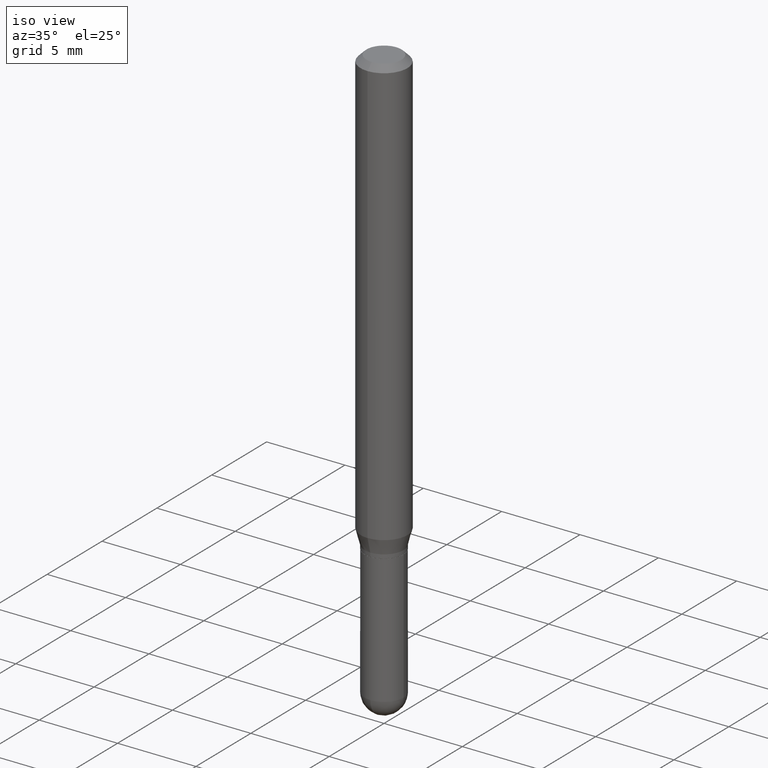
[diagram: clean part render]
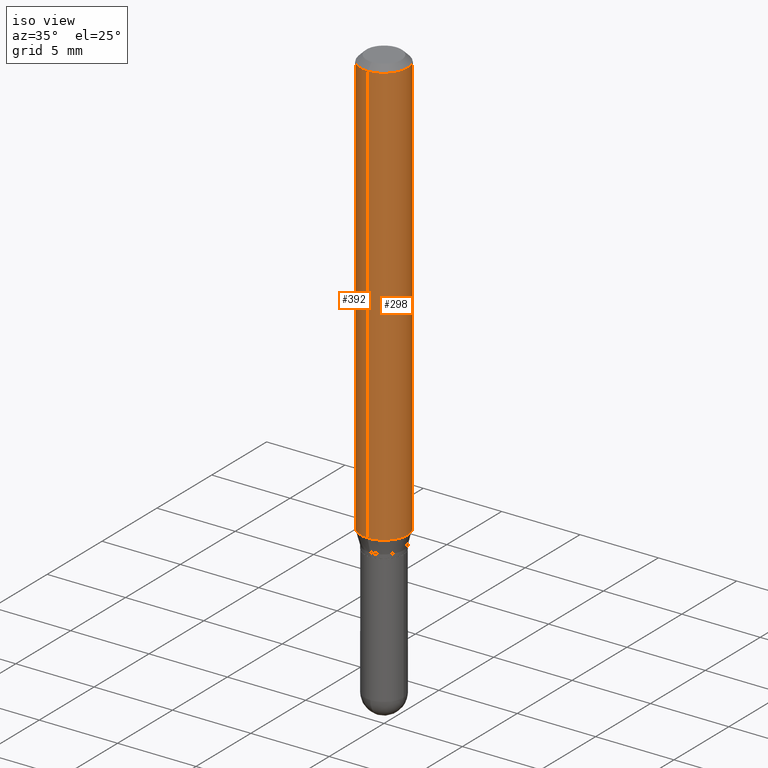
[diagram: same view with one multi-face feature highlighted, each face labeled with its STEP entity id]
A machine part, iso view. The highlighted faces form ONE feature: a constant-radius fillet chain: 2 tangent blend faces with common blend radius 1.4999 mm. The faces share edges in the B-rep.
Their STEP definitions:
[1] entity #392 (Cylinder):
#9 = EDGE_CURVE ( 'NONE', #94, #474, #416, .T. ) ;
#15 = ORIENTED_EDGE ( 'NONE', *, *, #9, .F. ) ;
#19 = VERTEX_POINT ( 'NONE', #83 ) ;
#32 = CIRCLE ( 'NONE', #331, 0.05904999999999999832 ) ;
#55 = DIRECTION ( 'NONE',  ( -2.445540907336680445E-29, 3.491378085890391934E-15, 1.000000000000000000 ) ) ;
#75 = CARTESIAN_POINT ( 'NONE',  ( 0.000000000000000000, 0.000000000000000000, 0.000000000000000000 ) ) ;
#83 = CARTESIAN_POINT ( 'NONE',  ( -4.123439461173478031E-16, -0.05905000000000376614, -1.075339299545447158 ) ) ;
#84 = DIRECTION ( 'NONE',  ( -2.445540907336680445E-29, 3.491378085890391934E-15, 1.000000000000000000 ) ) ;
#94 = VERTEX_POINT ( 'NONE', #167 ) ;
#118 = DIRECTION ( 'NONE',  ( -6.982962677686265922E-15, -1.000000000000000000, 4.626330217890369336E-15 ) ) ;
#121 = EDGE_CURVE ( 'NONE', #19, #474, #136, .T. ) ;
#136 = LINE ( 'NONE', #447, #373 ) ;
#167 = CARTESIAN_POINT ( 'NONE',  ( 4.195754854663657226E-16, 0.05904999999999996363, -0.01500000000000067078 ) ) ;
#181 = DIRECTION ( 'NONE',  ( -2.445540907336680445E-29, 3.491378085890391934E-15, 1.000000000000000000 ) ) ;
#189 = VERTEX_POINT ( 'NONE', #195 ) ;
#195 = CARTESIAN_POINT ( 'NONE',  ( 4.195754854663652789E-16, 0.05904999999999623744, -1.075339299545447380 ) ) ;
#199 = DIRECTION ( 'NONE',  ( -2.445540907336680445E-29, 3.491378085890391934E-15, 1.000000000000000000 ) ) ;
#243 = DIRECTION ( 'NONE',  ( -6.982962677686265922E-15, -1.000000000000000000, 3.491378085890392328E-15 ) ) ;
#252 = CARTESIAN_POINT ( 'NONE',  ( 3.668311361005134383E-31, -5.237067128835749592E-17, -0.01500000000000046262 ) ) ;
#311 = AXIS2_PLACEMENT_3D ( 'NONE', #252, #181, #485 ) ;
#326 = CARTESIAN_POINT ( 'NONE',  ( 4.195754854663391478E-16, 0.05905000000000000526, -2.061658759718276850E-16 ) ) ;
#331 = AXIS2_PLACEMENT_3D ( 'NONE', #405, #511, #118 ) ;
#336 = ORIENTED_EDGE ( 'NONE', *, *, #384, .T. ) ;
#341 = EDGE_CURVE ( 'NONE', #189, #94, #358, .T. ) ;
#357 = VECTOR ( 'NONE', #199, 39.37007874015748143 ) ;
#358 = LINE ( 'NONE', #326, #357 ) ;
#365 = CYLINDRICAL_SURFACE ( 'NONE', #410, 0.05905000000000000526 ) ;
#373 = VECTOR ( 'NONE', #55, 39.37007874015748143 ) ;
#384 = EDGE_CURVE ( 'NONE', #189, #19, #32, .T. ) ;
#392 = ADVANCED_FACE ( 'NONE', ( #434 ), #365, .T. ) ;
#405 = CARTESIAN_POINT ( 'NONE',  ( 2.629786246305163697E-29, -3.754416065329698001E-15, -1.075339299545447158 ) ) ;
#410 = AXIS2_PLACEMENT_3D ( 'NONE', #75, #84, #243 ) ;
#416 = CIRCLE ( 'NONE', #311, 0.05905000000000001914 ) ;
#419 = CARTESIAN_POINT ( 'NONE',  ( -4.123439461173737369E-16, -0.05905000000000006771, -0.01500000000000025618 ) ) ;
#429 = ORIENTED_EDGE ( 'NONE', *, *, #121, .T. ) ;
#434 = FACE_OUTER_BOUND ( 'NONE', #503, .T. ) ;
#447 = CARTESIAN_POINT ( 'NONE',  ( -4.123439461173740327E-16, -0.05905000000000000526, 2.061658759718276850E-16 ) ) ;
#474 = VERTEX_POINT ( 'NONE', #419 ) ;
#485 = DIRECTION ( 'NONE',  ( -6.982962677686265922E-15, -1.000000000000000000, 3.505890868245044514E-15 ) ) ;
#503 = EDGE_LOOP ( 'NONE', ( #505, #336, #429, #15 ) ) ;
#505 = ORIENTED_EDGE ( 'NONE', *, *, #341, .F. ) ;
#511 = DIRECTION ( 'NONE',  ( -2.445540907336680445E-29, 3.491378085890391934E-15, 1.000000000000000000 ) ) ;
[2] entity #298 (Cylinder):
#3 = AXIS2_PLACEMENT_3D ( 'NONE', #433, #74, #396 ) ;
#7 = ORIENTED_EDGE ( 'NONE', *, *, #111, .F. ) ;
#12 = AXIS2_PLACEMENT_3D ( 'NONE', #122, #441, #270 ) ;
#19 = VERTEX_POINT ( 'NONE', #83 ) ;
#31 = CIRCLE ( 'NONE', #386, 0.05905000000000001914 ) ;
#55 = DIRECTION ( 'NONE',  ( -2.445540907336680445E-29, 3.491378085890391934E-15, 1.000000000000000000 ) ) ;
#74 = DIRECTION ( 'NONE',  ( -2.445540907336680445E-29, 3.491378085890391934E-15, 1.000000000000000000 ) ) ;
#83 = CARTESIAN_POINT ( 'NONE',  ( -4.123439461173478031E-16, -0.05905000000000376614, -1.075339299545447158 ) ) ;
#87 = FACE_OUTER_BOUND ( 'NONE', #217, .T. ) ;
#94 = VERTEX_POINT ( 'NONE', #167 ) ;
#104 = CARTESIAN_POINT ( 'NONE',  ( 3.668311361005134383E-31, -5.237067128835749592E-17, -0.01500000000000046262 ) ) ;
#110 = ORIENTED_EDGE ( 'NONE', *, *, #121, .F. ) ;
#111 = EDGE_CURVE ( 'NONE', #474, #94, #31, .T. ) ;
#121 = EDGE_CURVE ( 'NONE', #19, #474, #136, .T. ) ;
#122 = CARTESIAN_POINT ( 'NONE',  ( 0.000000000000000000, 0.000000000000000000, 0.000000000000000000 ) ) ;
#136 = LINE ( 'NONE', #447, #373 ) ;
#167 = CARTESIAN_POINT ( 'NONE',  ( 4.195754854663657226E-16, 0.05904999999999996363, -0.01500000000000067078 ) ) ;
#172 = ORIENTED_EDGE ( 'NONE', *, *, #341, .T. ) ;
#182 = ORIENTED_EDGE ( 'NONE', *, *, #309, .T. ) ;
#189 = VERTEX_POINT ( 'NONE', #195 ) ;
#195 = CARTESIAN_POINT ( 'NONE',  ( 4.195754854663652789E-16, 0.05904999999999623744, -1.075339299545447380 ) ) ;
#199 = DIRECTION ( 'NONE',  ( -2.445540907336680445E-29, 3.491378085890391934E-15, 1.000000000000000000 ) ) ;
#217 = EDGE_LOOP ( 'NONE', ( #182, #172, #7, #110 ) ) ;
#236 = CIRCLE ( 'NONE', #3, 0.05904999999999999832 ) ;
#270 = DIRECTION ( 'NONE',  ( -6.982962677686265922E-15, -1.000000000000000000, 3.491378085890392328E-15 ) ) ;
#298 = ADVANCED_FACE ( 'NONE', ( #87 ), #313, .T. ) ;
#309 = EDGE_CURVE ( 'NONE', #19, #189, #236, .T. ) ;
#313 = CYLINDRICAL_SURFACE ( 'NONE', #12, 0.05905000000000000526 ) ;
#326 = CARTESIAN_POINT ( 'NONE',  ( 4.195754854663391478E-16, 0.05905000000000000526, -2.061658759718276850E-16 ) ) ;
#341 = EDGE_CURVE ( 'NONE', #189, #94, #358, .T. ) ;
#357 = VECTOR ( 'NONE', #199, 39.37007874015748143 ) ;
#358 = LINE ( 'NONE', #326, #357 ) ;
#373 = VECTOR ( 'NONE', #55, 39.37007874015748143 ) ;
#386 = AXIS2_PLACEMENT_3D ( 'NONE', #104, #476, #414 ) ;
#396 = DIRECTION ( 'NONE',  ( -6.982962677686265922E-15, -1.000000000000000000, 4.626330217890369336E-15 ) ) ;
#414 = DIRECTION ( 'NONE',  ( -6.982962677686265922E-15, -1.000000000000000000, 3.505890868245044514E-15 ) ) ;
#419 = CARTESIAN_POINT ( 'NONE',  ( -4.123439461173737369E-16, -0.05905000000000006771, -0.01500000000000025618 ) ) ;
#433 = CARTESIAN_POINT ( 'NONE',  ( 2.629786246305163697E-29, -3.754416065329698001E-15, -1.075339299545447158 ) ) ;
#441 = DIRECTION ( 'NONE',  ( -2.445540907336680445E-29, 3.491378085890391934E-15, 1.000000000000000000 ) ) ;
#447 = CARTESIAN_POINT ( 'NONE',  ( -4.123439461173740327E-16, -0.05905000000000000526, 2.061658759718276850E-16 ) ) ;
#474 = VERTEX_POINT ( 'NONE', #419 ) ;
#476 = DIRECTION ( 'NONE',  ( -2.445540907336680445E-29, 3.491378085890391934E-15, 1.000000000000000000 ) ) ;